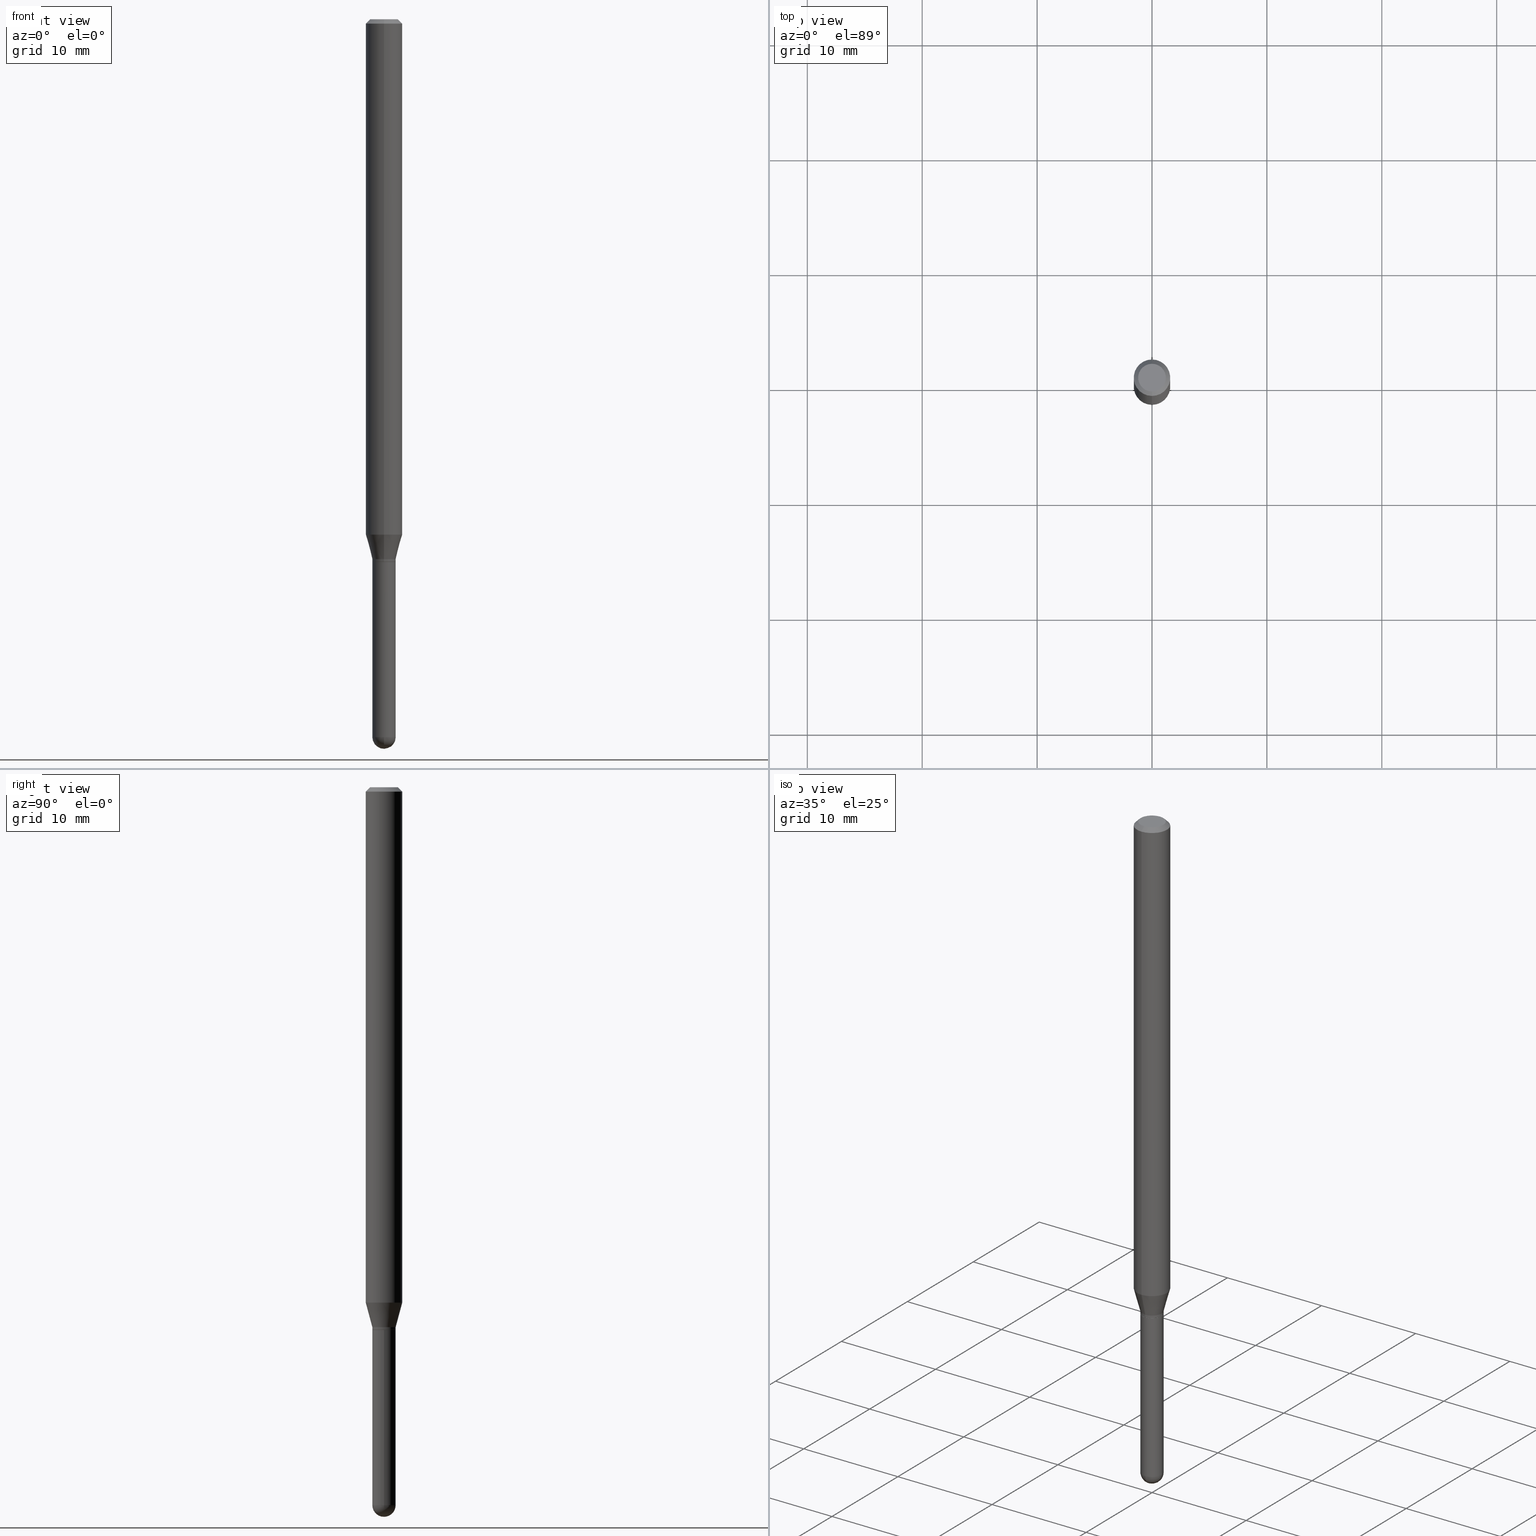
[diagram: canonical four-view strip — front | top / right | iso, engineering-drawing reading convention]
A machine part, canonical four-view strip (front | top / right | iso — engineering-drawing reading convention). The complete STEP part file that produces these views, byte-faithful:
ISO-10303-21;
HEADER;
FILE_DESCRIPTION (( 'STEP AP203' ),
    '1' );
FILE_NAME ('00997.STEP',
    '2024-03-07T19:36:14',
    ( '' ),
    ( '' ),
    'SwSTEP 2.0',
    'SolidWorks 2023',
    '' );
FILE_SCHEMA (( 'CONFIG_CONTROL_DESIGN' ));
ENDSEC;

DATA;
#1 = LINE ( 'NONE', #199, #5 ) ;
#2 = ORIENTED_EDGE ( 'NONE', *, *, #374, .T. ) ;
#3 = DIRECTION ( 'NONE',  ( -6.982962677686265922E-15, -1.000000000000000000, 3.491474641413525803E-15 ) ) ;
#4 = CARTESIAN_POINT ( 'NONE',  ( -2.793185071074520588E-16, -0.04000000000000020206, 1.396589856565417362E-16 ) ) ;
#5 = VECTOR ( 'NONE', #113, 39.37007874015748143 ) ;
#6 = ADVANCED_FACE ( 'NONE', ( #453 ), #283, .T. ) ;
#7 = ORIENTED_EDGE ( 'NONE', *, *, #406, .F. ) ;
#8 = CIRCLE ( 'NONE', #195, 0.04000000000000000083 ) ;
#9 = DIRECTION ( 'NONE',  ( -2.445473482975243677E-29, 3.491474641413525803E-15, 1.000000000000000000 ) ) ;
#10 = ADVANCED_FACE ( 'NONE', ( #460 ), #213, .T. ) ;
#11 = VERTEX_POINT ( 'NONE', #37 ) ;
#12 = DIRECTION ( 'NONE',  ( -2.445468806185136597E-29, 3.491481338843145583E-15, 1.000000000000000000 ) ) ;
#13 = CONICAL_SURFACE ( 'NONE', #98, 0.04000000000000020206, 0.2617993877991505181 ) ;
#14 = CC_DESIGN_PERSON_AND_ORGANIZATION_ASSIGNMENT ( #218, #366, ( #488 ) ) ;
#15 = ADVANCED_FACE ( 'NONE', ( #257 ), #292, .F. ) ;
#16 = COORDINATED_UNIVERSAL_TIME_OFFSET ( 5, 0, .BEHIND. ) ;
#17 = VERTEX_POINT ( 'NONE', #255 ) ;
#18 = DIRECTION ( 'NONE',  ( -2.445473482975243677E-29, 3.491474641413525803E-15, 1.000000000000000000 ) ) ;
#19 = CC_DESIGN_APPROVAL ( #318, ( #488 ) ) ;
#20 = EDGE_CURVE ( 'NONE', #423, #451, #56, .T. ) ;
#21 = CARTESIAN_POINT ( 'NONE',  ( -2.842170943039801268E-16, -0.04000000000000862588, -2.459999999999999520 ) ) ;
#22 = PERSON_AND_ORGANIZATION ( #474, #401 ) ;
#23 = EDGE_CURVE ( 'NONE', #122, #41, #184, .T. ) ;
#24 = CARTESIAN_POINT ( 'NONE',  ( -2.758270257685619665E-16, -0.03950000000000649519, -1.860000000000000098 ) ) ;
#25 = ORIENTED_EDGE ( 'NONE', *, *, #316, .T. ) ;
#26 = ADVANCED_FACE ( 'NONE', ( #182 ), #317, .T. ) ;
#27 = DIRECTION ( 'NONE',  ( 6.982962677686265922E-15, 1.000000000000000000, 0.000000000000000000 ) ) ;
#28 = CARTESIAN_POINT ( 'NONE',  ( 2.842170943040414608E-16, 0.04000000000000020206, -1.396589856565417362E-16 ) ) ;
#29 = DIRECTION ( 'NONE',  ( 2.445473482975243677E-29, -3.491474641413525803E-15, -1.000000000000000000 ) ) ;
#30 = EDGE_LOOP ( 'NONE', ( #368, #157, #153, #270 ) ) ;
#31 = DIRECTION ( 'NONE',  ( 6.982962677686265922E-15, 1.000000000000000000, -3.483106191921935554E-15 ) ) ;
#32 = DIRECTION ( 'NONE',  ( -6.982962677686265922E-15, -1.000000000000000000, 3.491474641413525803E-15 ) ) ;
#33 = DIRECTION ( 'NONE',  ( -6.982962677686265922E-15, -1.000000000000000000, 3.491474641413525803E-15 ) ) ;
#34 = AXIS2_PLACEMENT_3D ( 'NONE', #322, #18, #486 ) ;
#35 = LOCAL_TIME ( 14, 36, 14.00000000000000000, #484 ) ;
#36 = EDGE_LOOP ( 'NONE', ( #2, #300, #311, #116, #121 ) ) ;
#37 = CARTESIAN_POINT ( 'NONE',  ( 0.04000000000000000083, -6.773473797355701271E-15, -1.860000000000000098 ) ) ;
#38 = CARTESIAN_POINT ( 'NONE',  ( -3.773273898774340269E-16, -0.04749999999999999362, 1.569844077474044150E-16 ) ) ;
#39 = EDGE_CURVE ( 'NONE', #477, #281, #425, .T. ) ;
#40 =( CONVERSION_BASED_UNIT ( 'INCH', #441 ) LENGTH_UNIT ( ) NAMED_UNIT ( #402 ) );
#41 = VERTEX_POINT ( 'NONE', #165 ) ;
#42 = DIRECTION ( 'NONE',  ( -2.445473482975243677E-29, 3.491474641413525803E-15, 1.000000000000000000 ) ) ;
#43 =( NAMED_UNIT ( * ) SI_UNIT ( $, .STERADIAN. ) SOLID_ANGLE_UNIT ( ) );
#44 = EDGE_LOOP ( 'NONE', ( #219, #78, #102, #52 ) ) ;
#45 = DIRECTION ( 'NONE',  ( -2.445468806185136597E-29, 3.491481338843145583E-15, 1.000000000000000000 ) ) ;
#46 = CC_DESIGN_PERSON_AND_ORGANIZATION_ASSIGNMENT ( #22, #493, ( #134 ) ) ;
#47 = VECTOR ( 'NONE', #411, 39.37007874015748143 ) ;
#48 = VERTEX_POINT ( 'NONE', #126 ) ;
#49 = DIRECTION ( 'NONE',  ( -2.445468806185136597E-29, 3.491481338843145583E-15, 1.000000000000000000 ) ) ;
#50 = EDGE_CURVE ( 'NONE', #151, #104, #293, .T. ) ;
#51 = ORIENTED_EDGE ( 'NONE', *, *, #221, .T. ) ;
#52 = ORIENTED_EDGE ( 'NONE', *, *, #374, .F. ) ;
#53 = CC_DESIGN_PERSON_AND_ORGANIZATION_ASSIGNMENT ( #144, #267, ( #360 ) ) ;
#54 = CARTESIAN_POINT ( 'NONE',  ( 4.548580678333953911E-29, -6.494142833029159350E-15, -1.860000000000000320 ) ) ;
#55 = LINE ( 'NONE', #266, #171 ) ;
#56 = CIRCLE ( 'NONE', #454, 0.06250000000000000000 ) ;
#57 = VECTOR ( 'NONE', #329, 39.37007874015748854 ) ;
#58 = EDGE_CURVE ( 'NONE', #304, #164, #325, .T. ) ;
#59 = CARTESIAN_POINT ( 'NONE',  ( 2.842170943040878557E-16, 0.03999999999999383909, -1.859500000000000375 ) ) ;
#60 = DIRECTION ( 'NONE',  ( -2.445473482975243677E-29, 3.491474641413525803E-15, 1.000000000000000000 ) ) ;
#61 = DIRECTION ( 'NONE',  ( -6.982962677686265133E-15, -1.000000000000000000, 6.916070870036109544E-15 ) ) ;
#62 = CARTESIAN_POINT ( 'NONE',  ( 6.012432598058718877E-29, -8.593942680750727058E-15, -2.459999999999999964 ) ) ;
#63 = CALENDAR_DATE ( 2024, 7, 3 ) ;
#64 = ORIENTED_EDGE ( 'NONE', *, *, #406, .T. ) ;
#65 = DATE_TIME_ROLE ( 'creation_date' ) ;
#66 = CIRCLE ( 'NONE', #386, 0.04000000000000000083 ) ;
#67 = CIRCLE ( 'NONE', #345, 0.04000000000000000083 ) ;
#68 = APPROVAL_STATUS ( 'not_yet_approved' ) ;
#69 = DIRECTION ( 'NONE',  ( -2.445473482975243677E-29, 3.491474641413525803E-15, 1.000000000000000000 ) ) ;
#70 = ADVANCED_FACE ( 'NONE', ( #154 ), #239, .T. ) ;
#71 = CARTESIAN_POINT ( 'NONE',  ( 6.111961682884482715E-29, -8.731152640706158510E-15, -2.500000000000000000 ) ) ;
#72 = CARTESIAN_POINT ( 'NONE',  ( 3.668210224462867880E-31, -5.237211962120292304E-17, -0.01500000000000000812 ) ) ;
#73 = PLANE ( 'NONE',  #233 ) ;
#74 = CALENDAR_DATE ( 2024, 7, 3 ) ;
#75 = CARTESIAN_POINT ( 'NONE',  ( 3.840629472727447874E-16, 0.04749999999999999362, -1.747056831868805136E-16 ) ) ;
#76 = AXIS2_PLACEMENT_3D ( 'NONE', #227, #42, #152 ) ;
#77 = EDGE_CURVE ( 'NONE', #160, #104, #55, .T. ) ;
#78 = ORIENTED_EDGE ( 'NONE', *, *, #58, .T. ) ;
#79 = DIRECTION ( 'NONE',  ( -6.982962677686265922E-15, -1.000000000000000000, 6.829619984160623533E-15 ) ) ;
#80 = ORIENTED_EDGE ( 'NONE', *, *, #434, .F. ) ;
#81 = EDGE_CURVE ( 'NONE', #122, #11, #467, .T. ) ;
#82 = ORIENTED_EDGE ( 'NONE', *, *, #183, .T. ) ;
#83 = DIRECTION ( 'NONE',  ( 6.982962677686265922E-15, 1.000000000000000000, -6.829619984160646410E-15 ) ) ;
#84 = AXIS2_PLACEMENT_3D ( 'NONE', #168, #482, #27 ) ;
#85 = AXIS2_PLACEMENT_3D ( 'NONE', #278, #87, #83 ) ;
#86 = ORIENTED_EDGE ( 'NONE', *, *, #209, .T. ) ;
#87 = DIRECTION ( 'NONE',  ( -1.000000000000000000, 6.982962677686265922E-15, -4.883557194083112340E-29 ) ) ;
#88 = CARTESIAN_POINT ( 'NONE',  ( 4.548571979504354361E-29, -6.494155290248250444E-15, -1.860000000000000098 ) ) ;
#89 = ORIENTED_EDGE ( 'NONE', *, *, #316, .F. ) ;
#90 = CARTESIAN_POINT ( 'NONE',  ( 6.015853263215436432E-29, -8.589044093554138346E-15, -2.459999999999999964 ) ) ;
#91 = CALENDAR_DATE ( 2024, 7, 3 ) ;
#92 = EDGE_CURVE ( 'NONE', #17, #11, #106, .T. ) ;
#93 = CARTESIAN_POINT ( 'NONE',  ( 3.316907271900976096E-16, 0.04749999999999999362, -1.702753643270114951E-16 ) ) ;
#94 = AXIS2_PLACEMENT_3D ( 'NONE', #463, #415, #110 ) ;
#95 = DIRECTION ( 'NONE',  ( -6.982962677686265922E-15, -1.000000000000000000, 6.829619984160623533E-15 ) ) ;
#96 = CARTESIAN_POINT ( 'NONE',  ( 4.547357941592466158E-29, -6.492397095708452389E-15, -1.859500000000000153 ) ) ;
#97 = FACE_OUTER_BOUND ( 'NONE', #238, .T. ) ;
#98 = AXIS2_PLACEMENT_3D ( 'NONE', #491, #69, #367 ) ;
#99 = CARTESIAN_POINT ( 'NONE',  ( 4.318776739546118311E-29, -6.166044969625421427E-15, -1.766028856829701565 ) ) ;
#100 = ADVANCED_FACE ( 'NONE', ( #348 ), #409, .T. ) ;
#101 = PERSON_AND_ORGANIZATION ( #474, #401 ) ;
#102 = ORIENTED_EDGE ( 'NONE', *, *, #253, .F. ) ;
#103 = DIRECTION ( 'NONE',  ( -7.105427357601000281E-15, -1.000000000000000000, 0.000000000000000000 ) ) ;
#104 = VERTEX_POINT ( 'NONE', #59 ) ;
#105 = CLOSED_SHELL ( 'NONE', ( #298, #319, #15, #416, #70 ) ) ;
#106 = CIRCLE ( 'NONE', #464, 0.04000000000000000083 ) ;
#107 = CARTESIAN_POINT ( 'NONE',  ( 2.793185071074961364E-16, 0.03999999999999350603, -1.860000000000000320 ) ) ;
#108 = APPROVAL_ROLE ( '' ) ;
#109 = CARTESIAN_POINT ( 'NONE',  ( 0.000000000000000000, 0.000000000000000000, 0.000000000000000000 ) ) ;
#110 = DIRECTION ( 'NONE',  ( 1.000000000000000000, -6.982962677686259611E-15, 0.000000000000000000 ) ) ;
#111 = VECTOR ( 'NONE', #232, 39.37007874015748143 ) ;
#112 = AXIS2_PLACEMENT_3D ( 'NONE', #99, #249, #188 ) ;
#113 = DIRECTION ( 'NONE',  ( -4.937700262164674260E-15, -0.7071067811865632269, 0.7071067811865319186 ) ) ;
#114 = ORIENTED_EDGE ( 'NONE', *, *, #209, .F. ) ;
#115 = DIRECTION ( 'NONE',  ( -2.445473482975243677E-29, 3.491474641413525803E-15, 1.000000000000000000 ) ) ;
#116 = ORIENTED_EDGE ( 'NONE', *, *, #81, .F. ) ;
#117 = FACE_OUTER_BOUND ( 'NONE', #30, .T. ) ;
#118 = EDGE_LOOP ( 'NONE', ( #260, #196 ) ) ;
#119 = CARTESIAN_POINT ( 'NONE',  ( 4.524125943504201082E-29, -6.459228086615023288E-15, -1.850000000000000311 ) ) ;
#120 = AXIS2_PLACEMENT_3D ( 'NONE', #189, #137, #439 ) ;
#121 = ORIENTED_EDGE ( 'NONE', *, *, #23, .T. ) ;
#122 = VERTEX_POINT ( 'NONE', #230 ) ;
#123 = SPHERICAL_SURFACE ( 'NONE', #85, 0.04000000000000007022 ) ;
#124 = DIRECTION ( 'NONE',  ( -6.982962677686267499E-15, -1.000000000000000000, 6.829619984160625111E-15 ) ) ;
#125 = ADVANCED_FACE ( 'NONE', ( #117 ), #480, .T. ) ;
#126 = CARTESIAN_POINT ( 'NONE',  ( -0.04000000000000000083, -7.257382597597153280E-15, -2.459999999999999964 ) ) ;
#127 = DIRECTION ( 'NONE',  ( -2.445473482975243677E-29, 3.491474641413525803E-15, 1.000000000000000000 ) ) ;
#128 = CIRCLE ( 'NONE', #94, 0.04000000000000000083 ) ;
#129 = DIRECTION ( 'NONE',  ( -2.445473482975243677E-29, 3.491474641413525803E-15, 1.000000000000000000 ) ) ;
#130 = CARTESIAN_POINT ( 'NONE',  ( 2.824407374646859273E-16, 0.03949999999999349864, -1.860000000000000542 ) ) ;
#131 = APPROVAL_DATE_TIME ( #485, #276 ) ;
#132 = EDGE_CURVE ( 'NONE', #104, #151, #473, .T. ) ;
#133 = MECHANICAL_CONTEXT ( 'NONE', #506, 'mechanical' ) ;
#134 = PRODUCT_DEFINITION_FORMATION_WITH_SPECIFIED_SOURCE ( 'ANY', '', #360, .NOT_KNOWN. ) ;
#135 = EDGE_CURVE ( 'NONE', #304, #41, #508, .T. ) ;
#136 = DIRECTION ( 'NONE',  ( 6.982962677686265922E-15, 1.000000000000000000, -3.483106191921935554E-15 ) ) ;
#137 = DIRECTION ( 'NONE',  ( -2.445473482975243677E-29, 3.491474641413525803E-15, 1.000000000000000000 ) ) ;
#138 = CYLINDRICAL_SURFACE ( 'NONE', #376, 0.04000000000000000083 ) ;
#139 = AXIS2_PLACEMENT_3D ( 'NONE', #54, #161, #312 ) ;
#140 = DIRECTION ( 'NONE',  ( -2.445473482975243677E-29, 3.491474641413525803E-15, 1.000000000000000000 ) ) ;
#141 = APPROVAL_PERSON_ORGANIZATION ( #162, #422, #280 ) ;
#142 = DIRECTION ( 'NONE',  ( 6.982962677686265922E-15, 1.000000000000000000, -6.829619984160646410E-15 ) ) ;
#143 = CARTESIAN_POINT ( 'NONE',  ( -4.364351673553912750E-16, -0.06250000000000005551, -0.01499999999999979128 ) ) ;
#144 = PERSON_AND_ORGANIZATION ( #474, #401 ) ;
#145 = DIRECTION ( 'NONE',  ( 1.000000000000000000, -6.982962677686259611E-15, 0.000000000000000000 ) ) ;
#146 = DIRECTION ( 'NONE',  ( -6.982962677686267499E-15, -1.000000000000000000, 6.829619984160625111E-15 ) ) ;
#147 = CC_DESIGN_PERSON_AND_ORGANIZATION_ASSIGNMENT ( #333, #212, ( #134 ) ) ;
#148 = VERTEX_POINT ( 'NONE', #320 ) ;
#149 = DIRECTION ( 'NONE',  ( -2.445473482975243677E-29, 3.491474641413525803E-15, 1.000000000000000000 ) ) ;
#150 = AXIS2_PLACEMENT_3D ( 'NONE', #504, #384, #245 ) ;
#151 = VERTEX_POINT ( 'NONE', #407 ) ;
#152 = DIRECTION ( 'NONE',  ( -6.982962677686265922E-15, -1.000000000000000000, 3.491474641413525803E-15 ) ) ;
#153 = ORIENTED_EDGE ( 'NONE', *, *, #438, .T. ) ;
#154 = FACE_OUTER_BOUND ( 'NONE', #306, .T. ) ;
#155 = ORIENTED_EDGE ( 'NONE', *, *, #23, .F. ) ;
#156 = ORIENTED_EDGE ( 'NONE', *, *, #458, .T. ) ;
#157 = ORIENTED_EDGE ( 'NONE', *, *, #305, .T. ) ;
#158 = VECTOR ( 'NONE', #391, 39.37007874015748143 ) ;
#159 = AXIS2_PLACEMENT_3D ( 'NONE', #166, #393, #3 ) ;
#160 = VERTEX_POINT ( 'NONE', #130 ) ;
#161 = DIRECTION ( 'NONE',  ( -2.445473482975243677E-29, 3.491474641413525803E-15, 1.000000000000000000 ) ) ;
#162 = PERSON_AND_ORGANIZATION ( #474, #401 ) ;
#163 = DIRECTION ( 'NONE',  ( 2.445473482975243397E-29, -3.491474641413525803E-15, -1.000000000000000000 ) ) ;
#164 = VERTEX_POINT ( 'NONE', #21 ) ;
#165 = CARTESIAN_POINT ( 'NONE',  ( 2.793185071075110754E-16, 0.03999999999999144518, -2.460000000000000409 ) ) ;
#166 = CARTESIAN_POINT ( 'NONE',  ( 0.000000000000000000, 0.000000000000000000, 0.000000000000000000 ) ) ;
#167 = CARTESIAN_POINT ( 'NONE',  ( -4.287811248607203282E-16, -0.06250000000000005551, -0.01499999999999979128 ) ) ;
#168 = CARTESIAN_POINT ( 'NONE',  ( 6.012432598058718877E-29, -8.593942680750727058E-15, -2.459999999999999964 ) ) ;
#169 = ADVANCED_FACE ( 'NONE', ( #331 ), #494, .T. ) ;
#170 = DATE_AND_TIME ( #91, #437 ) ;
#171 = VECTOR ( 'NONE', #429, 39.37007874015748143 ) ;
#172 = AXIS2_PLACEMENT_3D ( 'NONE', #378, #29, #136 ) ;
#173 =( GEOMETRIC_REPRESENTATION_CONTEXT ( 3 ) GLOBAL_UNCERTAINTY_ASSIGNED_CONTEXT ( ( #395 ) ) GLOBAL_UNIT_ASSIGNED_CONTEXT ( ( #40, #191, #43 ) ) REPRESENTATION_CONTEXT ( 'NONE', 'WORKASPACE' ) );
#174 = ORIENTED_EDGE ( 'NONE', *, *, #240, .F. ) ;
#175 = ADVANCED_FACE ( 'NONE', ( #246 ), #247, .T. ) ;
#176 = DATE_AND_TIME ( #208, #273 ) ;
#177 = DATE_AND_TIME ( #63, #243 ) ;
#178 = ORIENTED_EDGE ( 'NONE', *, *, #250, .F. ) ;
#179 = DIRECTION ( 'NONE',  ( -2.445473482975243397E-29, 3.491474641413525803E-15, 1.000000000000000000 ) ) ;
#180 = PRODUCT_DEFINITION_SHAPE ( 'NONE', 'NONE',  #444 ) ;
#181 = SPHERICAL_SURFACE ( 'NONE', #431, 0.04000000000000007022 ) ;
#182 = FACE_OUTER_BOUND ( 'NONE', #385, .T. ) ;
#183 = EDGE_CURVE ( 'NONE', #226, #252, #363, .T. ) ;
#184 = CIRCLE ( 'NONE', #352, 0.04000000000000000083 ) ;
#185 = APPROVAL_PERSON_ORGANIZATION ( #490, #276, #400 ) ;
#186 = DIRECTION ( 'NONE',  ( -2.445473482975243677E-29, 3.491474641413525803E-15, 1.000000000000000000 ) ) ;
#187 = ORIENTED_EDGE ( 'NONE', *, *, #135, .T. ) ;
#188 = DIRECTION ( 'NONE',  ( -6.982962677686265922E-15, -1.000000000000000000, 4.370956789862821150E-15 ) ) ;
#189 = CARTESIAN_POINT ( 'NONE',  ( 4.318776739546118311E-29, -6.166044969625421427E-15, -1.766028856829701565 ) ) ;
#190 = DIRECTION ( 'NONE',  ( 1.000000000000000000, -6.982962677686259611E-15, 0.000000000000000000 ) ) ;
#191 =( NAMED_UNIT ( * ) PLANE_ANGLE_UNIT ( ) SI_UNIT ( $, .RADIAN. ) );
#192 = ORIENTED_EDGE ( 'NONE', *, *, #263, .F. ) ;
#193 = EDGE_LOOP ( 'NONE', ( #256, #187, #155, #198 ) ) ;
#194 = AXIS2_PLACEMENT_3D ( 'NONE', #258, #220, #33 ) ;
#195 = AXIS2_PLACEMENT_3D ( 'NONE', #90, #12, #244 ) ;
#196 = ORIENTED_EDGE ( 'NONE', *, *, #92, .T. ) ;
#197 = DIRECTION ( 'NONE',  ( -2.445473482975243677E-29, 3.491474641413525803E-15, 1.000000000000000000 ) ) ;
#198 = ORIENTED_EDGE ( 'NONE', *, *, #483, .F. ) ;
#199 = CARTESIAN_POINT ( 'NONE',  ( -2.758270257685619665E-16, -0.03950000000000649519, -1.860000000000000098 ) ) ;
#200 = ORIENTED_EDGE ( 'NONE', *, *, #389, .F. ) ;
#201 = CC_DESIGN_APPROVAL ( #276, ( #134 ) ) ;
#202 = DIRECTION ( 'NONE',  ( -1.807323732225331717E-15, -0.2588190451025184080, 0.9659258262890689783 ) ) ;
#203 = DIRECTION ( 'NONE',  ( 6.982962677686265922E-15, 1.000000000000000000, -3.491474641413525803E-15 ) ) ;
#204 = CIRCLE ( 'NONE', #284, 0.06250000000000000000 ) ;
#205 = CALENDAR_DATE ( 2024, 7, 3 ) ;
#206 = CC_DESIGN_DATE_AND_TIME_ASSIGNMENT ( #177, #448, ( #488 ) ) ;
#207 = DIRECTION ( 'NONE',  ( -4.851104656540964275E-15, -0.7071067811865500152, -0.7071067811865450192 ) ) ;
#208 = CALENDAR_DATE ( 2024, 7, 3 ) ;
#209 = EDGE_CURVE ( 'NONE', #148, #423, #285, .T. ) ;
#210 = EDGE_LOOP ( 'NONE', ( #25, #355, #509, #339 ) ) ;
#211 = CARTESIAN_POINT ( 'NONE',  ( 0.000000000000000000, 0.000000000000000000, 0.000000000000000000 ) ) ;
#212 = PERSON_AND_ORGANIZATION_ROLE ( 'design_supplier' ) ;
#213 = CONICAL_SURFACE ( 'NONE', #172, 0.06250000000000000000, 0.7853981633974483900 ) ;
#214 = VECTOR ( 'NONE', #207, 39.37007874015748143 ) ;
#215 = ORIENTED_EDGE ( 'NONE', *, *, #221, .F. ) ;
#216 = FACE_OUTER_BOUND ( 'NONE', #466, .T. ) ;
#217 = DIRECTION ( 'NONE',  ( -6.982962677686265922E-15, -1.000000000000000000, 3.483106191921935554E-15 ) ) ;
#218 = PERSON_AND_ORGANIZATION ( #474, #401 ) ;
#219 = ORIENTED_EDGE ( 'NONE', *, *, #135, .F. ) ;
#220 = DIRECTION ( 'NONE',  ( -2.445473482975243677E-29, 3.491474641413525803E-15, 1.000000000000000000 ) ) ;
#221 = EDGE_CURVE ( 'NONE', #295, #151, #1, .T. ) ;
#222 = LINE ( 'NONE', #503, #57 ) ;
#223 = ORIENTED_EDGE ( 'NONE', *, *, #263, .T. ) ;
#224 = AXIS2_PLACEMENT_3D ( 'NONE', #336, #9, #124 ) ;
#225 = VECTOR ( 'NONE', #500, 39.37007874015748143 ) ;
#226 = VERTEX_POINT ( 'NONE', #38 ) ;
#227 = CARTESIAN_POINT ( 'NONE',  ( 0.000000000000000000, 0.000000000000000000, 0.000000000000000000 ) ) ;
#228 = EDGE_CURVE ( 'NONE', #11, #17, #66, .T. ) ;
#229 = ORIENTED_EDGE ( 'NONE', *, *, #358, .T. ) ;
#230 = CARTESIAN_POINT ( 'NONE',  ( 0.04000000000000000083, -7.820918199008643644E-15, -2.459999999999999964 ) ) ;
#231 = ORIENTED_EDGE ( 'NONE', *, *, #39, .T. ) ;
#232 = DIRECTION ( 'NONE',  ( -2.445468806185136877E-29, 3.491481338843145188E-15, 1.000000000000000000 ) ) ;
#233 = AXIS2_PLACEMENT_3D ( 'NONE', #449, #179, #32 ) ;
#234 = EDGE_CURVE ( 'NONE', #252, #423, #468, .T. ) ;
#235 = ORIENTED_EDGE ( 'NONE', *, *, #250, .T. ) ;
#236 = ADVANCED_FACE ( 'NONE', ( #359 ), #440, .F. ) ;
#237 = CARTESIAN_POINT ( 'NONE',  ( 4.364351673553919652E-16, 0.06249999999999995143, -0.01500000000000022669 ) ) ;
#238 = EDGE_LOOP ( 'NONE', ( #114, #156, #470, #289 ) ) ;
#239 = CYLINDRICAL_SURFACE ( 'NONE', #383, 0.04000000000000000083 ) ;
#240 = EDGE_CURVE ( 'NONE', #308, #477, #309, .T. ) ;
#241 = ORIENTED_EDGE ( 'NONE', *, *, #50, .T. ) ;
#242 = AXIS2_PLACEMENT_3D ( 'NONE', #369, #452, #492 ) ;
#243 = LOCAL_TIME ( 14, 36, 14.00000000000000000, #404 ) ;
#244 = DIRECTION ( 'NONE',  ( 1.000000000000000000, -6.982962677686259611E-15, 0.000000000000000000 ) ) ;
#245 = DIRECTION ( 'NONE',  ( -6.982962677686265922E-15, -1.000000000000000000, 6.829619984160623533E-15 ) ) ;
#246 = FACE_OUTER_BOUND ( 'NONE', #382, .T. ) ;
#247 = CONICAL_SURFACE ( 'NONE', #282, 0.03950000000000000039, 0.7853981633974739252 ) ;
#248 = CIRCLE ( 'NONE', #120, 0.06250000000000000000 ) ;
#249 = DIRECTION ( 'NONE',  ( -2.445473482975243677E-29, 3.491474641413525803E-15, 1.000000000000000000 ) ) ;
#250 = EDGE_CURVE ( 'NONE', #151, #477, #279, .T. ) ;
#251 = CARTESIAN_POINT ( 'NONE',  ( 4.440892098501060035E-16, 0.06249999999999995143, -0.01500000000000022669 ) ) ;
#252 = VERTEX_POINT ( 'NONE', #75 ) ;
#253 = EDGE_CURVE ( 'NONE', #48, #164, #128, .T. ) ;
#254 = VECTOR ( 'NONE', #197, 39.37007874015748143 ) ;
#255 = CARTESIAN_POINT ( 'NONE',  ( -0.04000000000000000083, -7.257382597597153280E-15, -1.860000000000000098 ) ) ;
#256 = ORIENTED_EDGE ( 'NONE', *, *, #58, .F. ) ;
#257 = FACE_OUTER_BOUND ( 'NONE', #118, .T. ) ;
#258 = CARTESIAN_POINT ( 'NONE',  ( 0.000000000000000000, 0.000000000000000000, 0.000000000000000000 ) ) ;
#259 = DIRECTION ( 'NONE',  ( 1.000000000000000000, -6.982962677686265922E-15, 4.876176775795935793E-29 ) ) ;
#260 = ORIENTED_EDGE ( 'NONE', *, *, #228, .T. ) ;
#261 = CARTESIAN_POINT ( 'NONE',  ( 3.641531520770962393E-16, 0.03999999999999374195, -1.850000000000000533 ) ) ;
#262 = APPROVAL_PERSON_ORGANIZATION ( #290, #318, #108 ) ;
#263 = EDGE_CURVE ( 'NONE', #252, #226, #398, .T. ) ;
#264 = APPLICATION_PROTOCOL_DEFINITION ( 'international standard', 'config_control_design', 1994, #302 ) ;
#265 = ORIENTED_EDGE ( 'NONE', *, *, #20, .T. ) ;
#266 = CARTESIAN_POINT ( 'NONE',  ( 2.806643806252849850E-16, 0.03949999999999349864, -1.860000000000000542 ) ) ;
#267 = PERSON_AND_ORGANIZATION_ROLE ( 'design_owner' ) ;
#268 = ORIENTED_EDGE ( 'NONE', *, *, #438, .F. ) ;
#269 = DIRECTION ( 'NONE',  ( 1.000000000000000000, -6.982962677686265922E-15, 4.876176775795935793E-29 ) ) ;
#270 = ORIENTED_EDGE ( 'NONE', *, *, #234, .F. ) ;
#271 = EDGE_CURVE ( 'NONE', #308, #148, #222, .T. ) ;
#272 = AXIS2_PLACEMENT_3D ( 'NONE', #96, #129, #146 ) ;
#273 = LOCAL_TIME ( 14, 36, 14.00000000000000000, #403 ) ;
#274 = ORIENTED_EDGE ( 'NONE', *, *, #396, .T. ) ;
#275 = EDGE_LOOP ( 'NONE', ( #241, #430, #89, #178 ) ) ;
#276 = APPROVAL ( #68, 'UNSPECIFIED' ) ;
#277 = DIRECTION ( 'NONE',  ( 4.937700262164548042E-15, 0.7071067811865451302, -0.7071067811865499042 ) ) ;
#278 = CARTESIAN_POINT ( 'NONE',  ( 6.012432598058718877E-29, -8.593942680750727058E-15, -2.459999999999999964 ) ) ;
#279 = LINE ( 'NONE', #4, #481 ) ;
#280 = APPROVAL_ROLE ( '' ) ;
#281 = VERTEX_POINT ( 'NONE', #499 ) ;
#282 = AXIS2_PLACEMENT_3D ( 'NONE', #362, #60, #61 ) ;
#283 = CYLINDRICAL_SURFACE ( 'NONE', #194, 0.04000000000000020206 ) ;
#284 = AXIS2_PLACEMENT_3D ( 'NONE', #489, #459, #414 ) ;
#285 = LINE ( 'NONE', #303, #158 ) ;
#286 = DIRECTION ( 'NONE',  ( -1.000000000000000000, 7.105427357601001070E-15, -4.926315508542082329E-29 ) ) ;
#287 = ADVANCED_FACE ( 'NONE', ( #377 ), #13, .T. ) ;
#288 = SHAPE_DEFINITION_REPRESENTATION ( #180, #299 ) ;
#289 = ORIENTED_EDGE ( 'NONE', *, *, #20, .F. ) ;
#290 = PERSON_AND_ORGANIZATION ( #474, #401 ) ;
#291 = ORIENTED_EDGE ( 'NONE', *, *, #81, .T. ) ;
#292 = PLANE ( 'NONE',  #487 ) ;
#293 = CIRCLE ( 'NONE', #272, 0.04000000000000019512 ) ;
#294 = CIRCLE ( 'NONE', #353, 0.04000000000000020206 ) ;
#295 = VERTEX_POINT ( 'NONE', #24 ) ;
#296 = DIRECTION ( 'NONE',  ( 2.438088387897960049E-29, -3.491481338843145188E-15, -1.000000000000000000 ) ) ;
#297 = DESIGN_CONTEXT ( 'detailed design', #302, 'design' ) ;
#298 = ADVANCED_FACE ( 'NONE', ( #332 ), #138, .T. ) ;
#299 = ADVANCED_BREP_SHAPE_REPRESENTATION ( '00997', ( #408, #419, #335 ), #173 ) ;
#300 = ORIENTED_EDGE ( 'NONE', *, *, #389, .T. ) ;
#301 = CARTESIAN_POINT ( 'NONE',  ( 0.04000000000000000083, -2.793185071074506290E-16, 1.950470710318374387E-30 ) ) ;
#302 = APPLICATION_CONTEXT ( 'configuration controlled 3d designs of mechanical parts and assemblies' ) ;
#303 = CARTESIAN_POINT ( 'NONE',  ( 4.440892098500625669E-16, 0.06250000000000000000, -2.182171650883453627E-16 ) ) ;
#304 = VERTEX_POINT ( 'NONE', #71 ) ;
#305 = EDGE_CURVE ( 'NONE', #226, #451, #417, .T. ) ;
#306 = EDGE_LOOP ( 'NONE', ( #200, #347, #321, #291, #330 ) ) ;
#307 = DIRECTION ( 'NONE',  ( -2.445473482975243677E-29, 3.491474641413525803E-15, 1.000000000000000000 ) ) ;
#308 = VERTEX_POINT ( 'NONE', #261 ) ;
#309 = CIRCLE ( 'NONE', #150, 0.04000000000000020206 ) ;
#310 = DIRECTION ( 'NONE',  ( -2.445468806185136597E-29, 3.491481338843145583E-15, 1.000000000000000000 ) ) ;
#311 = ORIENTED_EDGE ( 'NONE', *, *, #228, .F. ) ;
#312 = DIRECTION ( 'NONE',  ( -6.982962677686265133E-15, -1.000000000000000000, 6.916070870036109544E-15 ) ) ;
#313 = CYLINDRICAL_SURFACE ( 'NONE', #159, 0.06250000000000000000 ) ;
#314 = APPROVAL_STATUS ( 'not_yet_approved' ) ;
#315 = CARTESIAN_POINT ( 'NONE',  ( 4.548580678333953911E-29, -6.494142833029159350E-15, -1.860000000000000320 ) ) ;
#316 = EDGE_CURVE ( 'NONE', #477, #308, #294, .T. ) ;
#317 = CONICAL_SURFACE ( 'NONE', #139, 0.03950000000000000039, 0.7853981633974739252 ) ;
#318 = APPROVAL ( #456, 'UNSPECIFIED' ) ;
#319 = ADVANCED_FACE ( 'NONE', ( #380 ), #123, .T. ) ;
#320 = CARTESIAN_POINT ( 'NONE',  ( 4.440892098501060035E-16, 0.06249999999999387296, -1.766028856829701787 ) ) ;
#321 = ORIENTED_EDGE ( 'NONE', *, *, #483, .T. ) ;
#322 = CARTESIAN_POINT ( 'NONE',  ( 2.166845458586959201E-46, -3.093669190521751456E-32, -8.860637719738033927E-18 ) ) ;
#323 = DIRECTION ( 'NONE',  ( 1.000000000000000000, 0.000000000000000000, 0.000000000000000000 ) ) ;
#324 = CC_DESIGN_DATE_AND_TIME_ASSIGNMENT ( #176, #65, ( #444 ) ) ;
#325 = CIRCLE ( 'NONE', #375, 0.04000000000000007022 ) ;
#326 = LOCAL_TIME ( 14, 36, 14.00000000000000000, #16 ) ;
#327 = ORIENTED_EDGE ( 'NONE', *, *, #50, .F. ) ;
#328 = LINE ( 'NONE', #28, #225 ) ;
#329 = DIRECTION ( 'NONE',  ( 1.839019923739601893E-15, 0.2588190451025252359, 0.9659258262890670910 ) ) ;
#330 = ORIENTED_EDGE ( 'NONE', *, *, #92, .F. ) ;
#331 = FACE_OUTER_BOUND ( 'NONE', #349, .T. ) ;
#332 = FACE_OUTER_BOUND ( 'NONE', #36, .T. ) ;
#333 = PERSON_AND_ORGANIZATION ( #474, #401 ) ;
#334 = AXIS2_PLACEMENT_3D ( 'NONE', #119, #432, #95 ) ;
#335 = AXIS2_PLACEMENT_3D ( 'NONE', #211, #364, #323 ) ;
#336 = CARTESIAN_POINT ( 'NONE',  ( 4.547357941592466158E-29, -6.492397095708452389E-15, -1.859500000000000153 ) ) ;
#337 = CARTESIAN_POINT ( 'NONE',  ( 6.012432598058718877E-29, -8.593942680750727058E-15, -2.459999999999999964 ) ) ;
#338 = DIRECTION ( 'NONE',  ( -2.445468806185136597E-29, 3.491481338843145583E-15, 1.000000000000000000 ) ) ;
#339 = ORIENTED_EDGE ( 'NONE', *, *, #39, .F. ) ;
#340 = FACE_OUTER_BOUND ( 'NONE', #475, .T. ) ;
#341 = CARTESIAN_POINT ( 'NONE',  ( 2.166845458586959201E-46, -3.093669190521751456E-32, -8.860637719738033927E-18 ) ) ;
#342 = CARTESIAN_POINT ( 'NONE',  ( -0.04000000000000000083, 2.842170943040400803E-16, -1.967574036101962509E-30 ) ) ;
#343 = ORIENTED_EDGE ( 'NONE', *, *, #132, .F. ) ;
#344 = AXIS2_PLACEMENT_3D ( 'NONE', #72, #372, #31 ) ;
#345 = AXIS2_PLACEMENT_3D ( 'NONE', #418, #45, #145 ) ;
#346 = EDGE_CURVE ( 'NONE', #281, #451, #479, .T. ) ;
#347 = ORIENTED_EDGE ( 'NONE', *, *, #253, .T. ) ;
#348 = FACE_OUTER_BOUND ( 'NONE', #505, .T. ) ;
#349 = EDGE_LOOP ( 'NONE', ( #274, #86, #268, #392 ) ) ;
#350 = CARTESIAN_POINT ( 'NONE',  ( -2.793185071074067979E-16, -0.04000000000000666911, -1.849999999999999867 ) ) ;
#351 = ORIENTED_EDGE ( 'NONE', *, *, #458, .F. ) ;
#352 = AXIS2_PLACEMENT_3D ( 'NONE', #371, #338, #501 ) ;
#353 = AXIS2_PLACEMENT_3D ( 'NONE', #424, #140, #79 ) ;
#354 = CARTESIAN_POINT ( 'NONE',  ( 0.000000000000000000, 0.000000000000000000, 0.000000000000000000 ) ) ;
#355 = ORIENTED_EDGE ( 'NONE', *, *, #271, .T. ) ;
#356 = LINE ( 'NONE', #342, #47 ) ;
#357 = CC_DESIGN_PERSON_AND_ORGANIZATION_ASSIGNMENT ( #101, #497, ( #444 ) ) ;
#358 = EDGE_CURVE ( 'NONE', #160, #295, #410, .T. ) ;
#359 = FACE_OUTER_BOUND ( 'NONE', #512, .T. ) ;
#360 = PRODUCT ( '00997', '00997', '', ( #133 ) ) ;
#361 = CARTESIAN_POINT ( 'NONE',  ( -2.793185071074067979E-16, -0.04000000000000666911, -1.849999999999999867 ) ) ;
#362 = CARTESIAN_POINT ( 'NONE',  ( 4.548580678333953911E-29, -6.494142833029159350E-15, -1.860000000000000320 ) ) ;
#363 = CIRCLE ( 'NONE', #34, 0.04749999999999999362 ) ;
#364 = DIRECTION ( 'NONE',  ( 0.000000000000000000, 0.000000000000000000, 1.000000000000000000 ) ) ;
#365 = CC_DESIGN_SECURITY_CLASSIFICATION ( #488, ( #134 ) ) ;
#366 = PERSON_AND_ORGANIZATION_ROLE ( 'classification_officer' ) ;
#367 = DIRECTION ( 'NONE',  ( -6.982962677686265922E-15, -1.000000000000000000, 6.829619984160623533E-15 ) ) ;
#368 = ORIENTED_EDGE ( 'NONE', *, *, #183, .F. ) ;
#369 = CARTESIAN_POINT ( 'NONE',  ( 0.000000000000000000, 0.000000000000000000, 0.000000000000000000 ) ) ;
#370 = FACE_OUTER_BOUND ( 'NONE', #193, .T. ) ;
#371 = CARTESIAN_POINT ( 'NONE',  ( 6.015853263215436432E-29, -8.589044093554138346E-15, -2.459999999999999964 ) ) ;
#372 = DIRECTION ( 'NONE',  ( 2.445473482975243677E-29, -3.491474641413525803E-15, -1.000000000000000000 ) ) ;
#373 = CARTESIAN_POINT ( 'NONE',  ( 3.668210224462867880E-31, -5.237211962120292304E-17, -0.01500000000000000812 ) ) ;
#374 = EDGE_CURVE ( 'NONE', #41, #48, #8, .T. ) ;
#375 = AXIS2_PLACEMENT_3D ( 'NONE', #62, #286, #103 ) ;
#376 = AXIS2_PLACEMENT_3D ( 'NONE', #109, #413, #259 ) ;
#377 = FACE_OUTER_BOUND ( 'NONE', #210, .T. ) ;
#378 = CARTESIAN_POINT ( 'NONE',  ( 3.668210224462867880E-31, -5.237211962120292304E-17, -0.01500000000000000812 ) ) ;
#379 = EDGE_LOOP ( 'NONE', ( #478, #192, #433, #265 ) ) ;
#380 = FACE_OUTER_BOUND ( 'NONE', #44, .T. ) ;
#381 = CYLINDRICAL_SURFACE ( 'NONE', #76, 0.04000000000000020206 ) ;
#382 = EDGE_LOOP ( 'NONE', ( #510, #229, #51, #343 ) ) ;
#383 = AXIS2_PLACEMENT_3D ( 'NONE', #354, #310, #269 ) ;
#384 = DIRECTION ( 'NONE',  ( -2.445473482975243677E-29, 3.491474641413525803E-15, 1.000000000000000000 ) ) ;
#385 = EDGE_LOOP ( 'NONE', ( #64, #428, #327, #215 ) ) ;
#386 = AXIS2_PLACEMENT_3D ( 'NONE', #88, #426, #190 ) ;
#387 = CARTESIAN_POINT ( 'NONE',  ( -4.364351673553916201E-16, -0.06250000000000000000, 2.182171650883453627E-16 ) ) ;
#388 = AXIS2_PLACEMENT_3D ( 'NONE', #93, #163, #203 ) ;
#389 = EDGE_CURVE ( 'NONE', #48, #17, #356, .T. ) ;
#390 = CARTESIAN_POINT ( 'NONE',  ( 4.548571979504354361E-29, -6.494155290248250444E-15, -1.860000000000000098 ) ) ;
#391 = DIRECTION ( 'NONE',  ( -2.445473482975243677E-29, 3.491474641413525803E-15, 1.000000000000000000 ) ) ;
#392 = ORIENTED_EDGE ( 'NONE', *, *, #346, .F. ) ;
#393 = DIRECTION ( 'NONE',  ( -2.445473482975243677E-29, 3.491474641413525803E-15, 1.000000000000000000 ) ) ;
#394 = ORIENTED_EDGE ( 'NONE', *, *, #132, .T. ) ;
#395 = UNCERTAINTY_MEASURE_WITH_UNIT (LENGTH_MEASURE( 1.000000000000000082E-05 ), #40, 'distance_accuracy_value', 'NONE');
#396 = EDGE_CURVE ( 'NONE', #281, #148, #248, .T. ) ;
#397 = ORIENTED_EDGE ( 'NONE', *, *, #358, .F. ) ;
#398 = CIRCLE ( 'NONE', #476, 0.04749999999999999362 ) ;
#399 = ADVANCED_FACE ( 'NONE', ( #97 ), #313, .T. ) ;
#400 = APPROVAL_ROLE ( '' ) ;
#401 = ORGANIZATION ( 'UNSPECIFIED', 'UNSPECIFIED', '' ) ;
#402 = DIMENSIONAL_EXPONENTS ( 1.000000000000000000, 0.000000000000000000, 0.000000000000000000, 0.000000000000000000, 0.000000000000000000, 0.000000000000000000, 0.000000000000000000 ) ;
#403 = COORDINATED_UNIVERSAL_TIME_OFFSET ( 5, 0, .BEHIND. ) ;
#404 = COORDINATED_UNIVERSAL_TIME_OFFSET ( 5, 0, .BEHIND. ) ;
#405 = DIRECTION ( 'NONE',  ( -1.000000000000000000, 6.982962677686265922E-15, -4.883557194083112340E-29 ) ) ;
#406 = EDGE_CURVE ( 'NONE', #295, #160, #421, .T. ) ;
#407 = CARTESIAN_POINT ( 'NONE',  ( -2.793185071074055653E-16, -0.04000000000000655809, -1.859499999999999931 ) ) ;
#408 = MANIFOLD_SOLID_BREP ( 'Body-Move/Copy2[1]', #105 ) ;
#409 = CONICAL_SURFACE ( 'NONE', #334, 0.04000000000000020206, 0.2617993877991505181 ) ;
#410 = CIRCLE ( 'NONE', #443, 0.03950000000000000039 ) ;
#411 = DIRECTION ( 'NONE',  ( -2.445468806185136877E-29, 3.491481338843145188E-15, 1.000000000000000000 ) ) ;
#412 = APPROVAL_DATE_TIME ( #170, #422 ) ;
#413 = DIRECTION ( 'NONE',  ( -2.445468806185136597E-29, 3.491481338843145583E-15, 1.000000000000000000 ) ) ;
#414 = DIRECTION ( 'NONE',  ( -6.982962677686265922E-15, -1.000000000000000000, 3.483106191921935554E-15 ) ) ;
#415 = DIRECTION ( 'NONE',  ( -2.445468806185136597E-29, 3.491481338843145583E-15, 1.000000000000000000 ) ) ;
#416 = ADVANCED_FACE ( 'NONE', ( #370 ), #181, .T. ) ;
#417 = LINE ( 'NONE', #167, #214 ) ;
#418 = CARTESIAN_POINT ( 'NONE',  ( 6.015853263215436432E-29, -8.589044093554138346E-15, -2.459999999999999964 ) ) ;
#419 = MANIFOLD_SOLID_BREP ( 'Body-Move/Copy2[2]', #495 ) ;
#420 = VECTOR ( 'NONE', #202, 39.37007874015748854 ) ;
#421 = CIRCLE ( 'NONE', #465, 0.03950000000000000039 ) ;
#422 = APPROVAL ( #314, 'UNSPECIFIED' ) ;
#423 = VERTEX_POINT ( 'NONE', #251 ) ;
#424 = CARTESIAN_POINT ( 'NONE',  ( 4.524125943504201082E-29, -6.459228086615023288E-15, -1.850000000000000311 ) ) ;
#425 = LINE ( 'NONE', #361, #420 ) ;
#426 = DIRECTION ( 'NONE',  ( -2.445468806185136597E-29, 3.491481338843145583E-15, 1.000000000000000000 ) ) ;
#427 = ORIENTED_EDGE ( 'NONE', *, *, #271, .F. ) ;
#428 = ORIENTED_EDGE ( 'NONE', *, *, #77, .T. ) ;
#429 = DIRECTION ( 'NONE',  ( 5.024295867788190974E-15, 0.7071067811865681119, 0.7071067811865270336 ) ) ;
#430 = ORIENTED_EDGE ( 'NONE', *, *, #434, .T. ) ;
#431 = AXIS2_PLACEMENT_3D ( 'NONE', #337, #405, #142 ) ;
#432 = DIRECTION ( 'NONE',  ( -2.445473482975243677E-29, 3.491474641413525803E-15, 1.000000000000000000 ) ) ;
#433 = ORIENTED_EDGE ( 'NONE', *, *, #234, .T. ) ;
#434 = EDGE_CURVE ( 'NONE', #104, #308, #328, .T. ) ;
#435 = DIRECTION ( 'NONE',  ( -6.982962677686265133E-15, -1.000000000000000000, 6.916070870036109544E-15 ) ) ;
#436 = COORDINATED_UNIVERSAL_TIME_OFFSET ( 5, 0, .BEHIND. ) ;
#437 = LOCAL_TIME ( 14, 36, 14.00000000000000000, #436 ) ;
#438 = EDGE_CURVE ( 'NONE', #451, #423, #204, .T. ) ;
#439 = DIRECTION ( 'NONE',  ( -6.982962677686265922E-15, -1.000000000000000000, 4.370956789862821150E-15 ) ) ;
#440 = PLANE ( 'NONE',  #388 ) ;
#441 = LENGTH_MEASURE_WITH_UNIT ( LENGTH_MEASURE( 0.02539999999999999897 ), #511 );
#442 = DIRECTION ( 'NONE',  ( -6.982962677686266711E-15, -1.000000000000000000, 3.491474641413526197E-15 ) ) ;
#443 = AXIS2_PLACEMENT_3D ( 'NONE', #471, #307, #435 ) ;
#444 = PRODUCT_DEFINITION ( 'UNKNOWN', '', #134, #297 ) ;
#445 = DIRECTION ( 'NONE',  ( -6.982962677686265133E-15, -1.000000000000000000, 6.916070870036109544E-15 ) ) ;
#446 = ADVANCED_FACE ( 'NONE', ( #216 ), #73, .F. ) ;
#447 = DATE_AND_TIME ( #74, #326 ) ;
#448 = DATE_TIME_ROLE ( 'classification_date' ) ;
#449 = CARTESIAN_POINT ( 'NONE',  ( 4.548580678333953911E-29, -6.494142833029159350E-15, -1.860000000000000320 ) ) ;
#450 = APPLICATION_PROTOCOL_DEFINITION ( 'international standard', 'config_control_design', 1994, #506 ) ;
#451 = VERTEX_POINT ( 'NONE', #143 ) ;
#452 = DIRECTION ( 'NONE',  ( -2.445473482975243677E-29, 3.491474641413525803E-15, 1.000000000000000000 ) ) ;
#453 = FACE_OUTER_BOUND ( 'NONE', #275, .T. ) ;
#454 = AXIS2_PLACEMENT_3D ( 'NONE', #373, #186, #217 ) ;
#455 = CIRCLE ( 'NONE', #112, 0.06250000000000000000 ) ;
#456 = APPROVAL_STATUS ( 'not_yet_approved' ) ;
#457 = VECTOR ( 'NONE', #277, 39.37007874015748143 ) ;
#458 = EDGE_CURVE ( 'NONE', #148, #281, #455, .T. ) ;
#459 = DIRECTION ( 'NONE',  ( -2.445473482975243677E-29, 3.491474641413525803E-15, 1.000000000000000000 ) ) ;
#460 = FACE_OUTER_BOUND ( 'NONE', #379, .T. ) ;
#461 = DIRECTION ( 'NONE',  ( -1.000000000000000000, 6.982962677686265922E-15, -4.876176775795935793E-29 ) ) ;
#462 = PRODUCT_RELATED_PRODUCT_CATEGORY ( 'detail', '', ( #360 ) ) ;
#463 = CARTESIAN_POINT ( 'NONE',  ( 6.015853263215436432E-29, -8.589044093554138346E-15, -2.459999999999999964 ) ) ;
#464 = AXIS2_PLACEMENT_3D ( 'NONE', #390, #49, #472 ) ;
#465 = AXIS2_PLACEMENT_3D ( 'NONE', #315, #127, #445 ) ;
#466 = EDGE_LOOP ( 'NONE', ( #7, #397 ) ) ;
#467 = LINE ( 'NONE', #301, #111 ) ;
#468 = LINE ( 'NONE', #237, #457 ) ;
#469 = ORIENTED_EDGE ( 'NONE', *, *, #240, .T. ) ;
#470 = ORIENTED_EDGE ( 'NONE', *, *, #346, .T. ) ;
#471 = CARTESIAN_POINT ( 'NONE',  ( 4.548580678333953911E-29, -6.494142833029159350E-15, -1.860000000000000320 ) ) ;
#472 = DIRECTION ( 'NONE',  ( 1.000000000000000000, -6.982962677686259611E-15, 0.000000000000000000 ) ) ;
#473 = CIRCLE ( 'NONE', #224, 0.04000000000000019512 ) ;
#474 = PERSON ( 'UNSPECIFIED', 'UNSPECIFIED', 'UNSPECIFIED', ('UNSPECIFIED'), ('UNSPECIFIED'), ('UNSPECIFIED') ) ;
#475 = EDGE_LOOP ( 'NONE', ( #80, #394, #235, #174 ) ) ;
#476 = AXIS2_PLACEMENT_3D ( 'NONE', #341, #149, #442 ) ;
#477 = VERTEX_POINT ( 'NONE', #350 ) ;
#478 = ORIENTED_EDGE ( 'NONE', *, *, #305, .F. ) ;
#479 = LINE ( 'NONE', #387, #254 ) ;
#480 = CONICAL_SURFACE ( 'NONE', #344, 0.06250000000000000000, 0.7853981633974483900 ) ;
#481 = VECTOR ( 'NONE', #115, 39.37007874015748143 ) ;
#482 = DIRECTION ( 'NONE',  ( 1.000000000000000000, -6.982962677686265922E-15, 4.883557194083112340E-29 ) ) ;
#483 = EDGE_CURVE ( 'NONE', #164, #122, #67, .T. ) ;
#484 = COORDINATED_UNIVERSAL_TIME_OFFSET ( 5, 0, .BEHIND. ) ;
#485 = DATE_AND_TIME ( #205, #35 ) ;
#486 = DIRECTION ( 'NONE',  ( -6.982962677686266711E-15, -1.000000000000000000, 3.491474641413526197E-15 ) ) ;
#487 = AXIS2_PLACEMENT_3D ( 'NONE', #107, #296, #461 ) ;
#488 = SECURITY_CLASSIFICATION ( '', '', #498 ) ;
#489 = CARTESIAN_POINT ( 'NONE',  ( 3.668210224462867880E-31, -5.237211962120292304E-17, -0.01500000000000000812 ) ) ;
#490 = PERSON_AND_ORGANIZATION ( #474, #401 ) ;
#491 = CARTESIAN_POINT ( 'NONE',  ( 4.524125943504201082E-29, -6.459228086615023288E-15, -1.850000000000000311 ) ) ;
#492 = DIRECTION ( 'NONE',  ( -6.982962677686265922E-15, -1.000000000000000000, 3.491474641413525803E-15 ) ) ;
#493 = PERSON_AND_ORGANIZATION_ROLE ( 'creator' ) ;
#494 = CYLINDRICAL_SURFACE ( 'NONE', #242, 0.06250000000000000000 ) ;
#495 = CLOSED_SHELL ( 'NONE', ( #6, #26, #125, #169, #287, #100, #399, #10, #236, #446, #175, #507 ) ) ;
#496 = CC_DESIGN_APPROVAL ( #422, ( #444 ) ) ;
#497 = PERSON_AND_ORGANIZATION_ROLE ( 'creator' ) ;
#498 = SECURITY_CLASSIFICATION_LEVEL ( 'unclassified' ) ;
#499 = CARTESIAN_POINT ( 'NONE',  ( -4.364351673553481341E-16, -0.06250000000000613398, -1.766028856829701343 ) ) ;
#500 = DIRECTION ( 'NONE',  ( -2.445473482975243677E-29, 3.491474641413525803E-15, 1.000000000000000000 ) ) ;
#501 = DIRECTION ( 'NONE',  ( 1.000000000000000000, -6.982962677686259611E-15, 0.000000000000000000 ) ) ;
#502 = APPROVAL_DATE_TIME ( #447, #318 ) ;
#503 = CARTESIAN_POINT ( 'NONE',  ( 2.842170943040867217E-16, 0.03999999999999374195, -1.850000000000000533 ) ) ;
#504 = CARTESIAN_POINT ( 'NONE',  ( 4.524125943504201082E-29, -6.459228086615023288E-15, -1.850000000000000311 ) ) ;
#505 = EDGE_LOOP ( 'NONE', ( #427, #469, #231, #351 ) ) ;
#506 = APPLICATION_CONTEXT ( 'configuration controlled 3d designs of mechanical parts and assemblies' ) ;
#507 = ADVANCED_FACE ( 'NONE', ( #340 ), #381, .T. ) ;
#508 = CIRCLE ( 'NONE', #84, 0.04000000000000007022 ) ;
#509 = ORIENTED_EDGE ( 'NONE', *, *, #396, .F. ) ;
#510 = ORIENTED_EDGE ( 'NONE', *, *, #77, .F. ) ;
#511 =( LENGTH_UNIT ( ) NAMED_UNIT ( * ) SI_UNIT ( $, .METRE. ) );
#512 = EDGE_LOOP ( 'NONE', ( #223, #82 ) ) ;
ENDSEC;
END-ISO-10303-21;
